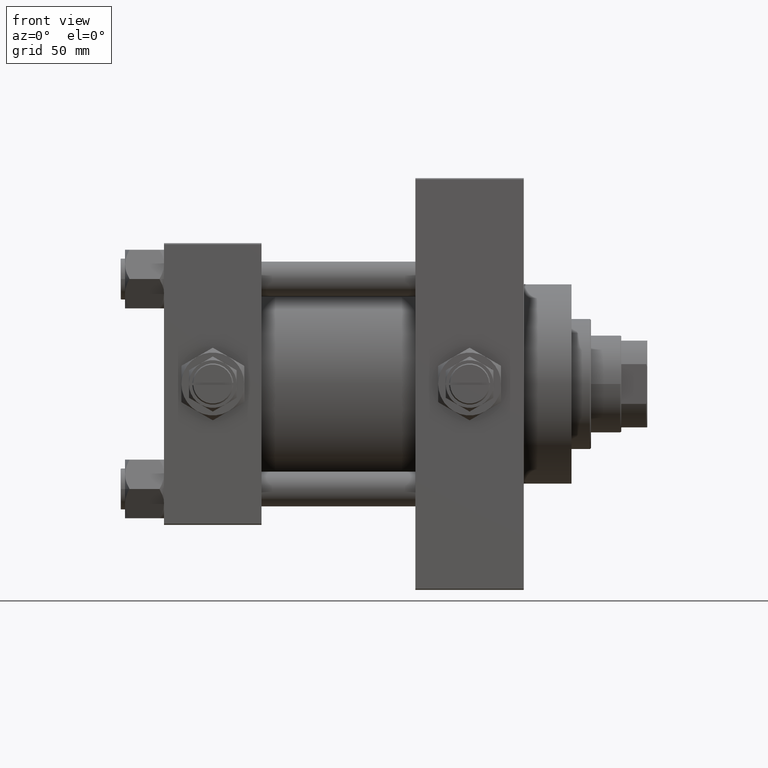
[diagram: clean part render]
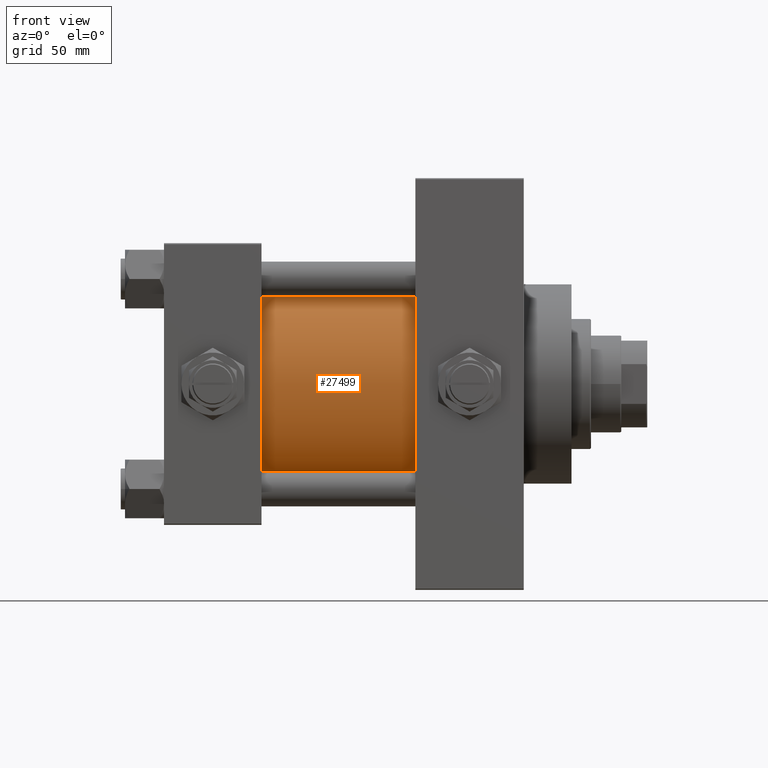
[diagram: same view with one face highlighted and labeled with its STEP entity id]
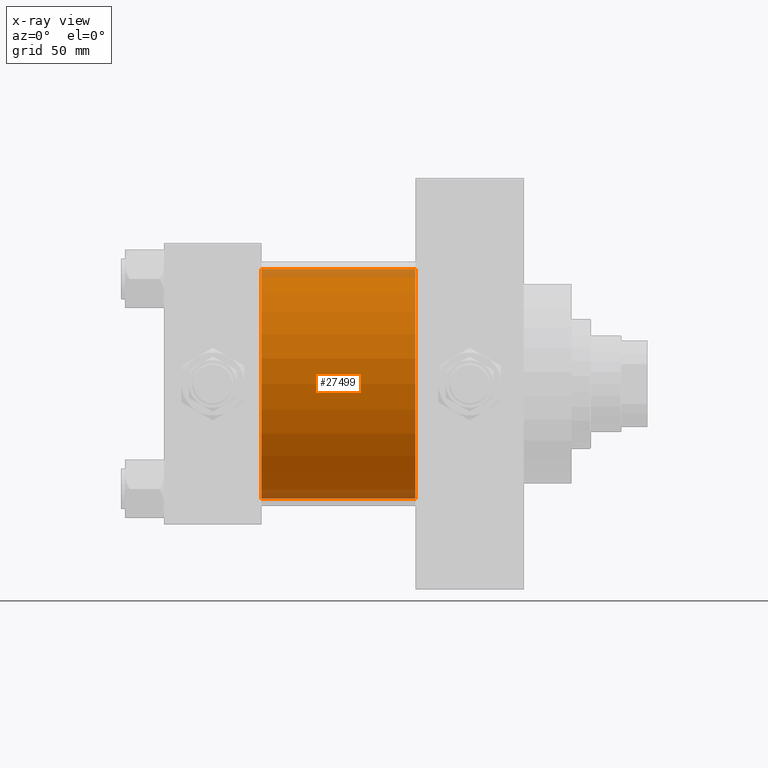
[diagram: x-ray of the same camera — body ghosted, the highlighted face saturated]
A machine part, front view. The second image highlights one B-rep face of the part: STEP entity #27499.
The next image is the same camera in x-ray: the body ghosted, the highlighted face saturated — about 7% of this face is hidden behind the body in this view.
In plain terms, the highlighted cylindrical surface (partial cylindrical patch) has radius 53 mm, axis along (-1, -0, -0).
Its self-contained STEP definition (entity closure, byte-faithful):
#696 = ORIENTED_EDGE ( 'NONE', *, *, #7670, .F. ) ;
#1252 = DIRECTION ( 'NONE',  ( -1.000000000000000000, -0.000000000000000000, -0.000000000000000000 ) ) ;
#1954 = CARTESIAN_POINT ( 'NONE',  ( 45.00000000000000000, -2.602085213965210642E-15, 53.00000000000000711 ) ) ;
#2209 = DIRECTION ( 'NONE',  ( 1.000000000000000000, 0.000000000000000000, 0.000000000000000000 ) ) ;
#3716 = CYLINDRICAL_SURFACE ( 'NONE', #19682, 53.00000000000000711 ) ;
#4535 = CARTESIAN_POINT ( 'NONE',  ( 115.9999999999999858, -2.602085213965210642E-15, 53.00000000000000711 ) ) ;
#5491 = DIRECTION ( 'NONE',  ( 0.000000000000000000, 0.000000000000000000, -1.000000000000000000 ) ) ;
#5982 = CARTESIAN_POINT ( 'NONE',  ( 45.00000000000000000, 3.888542821515762466E-15, -53.00000000000000711 ) ) ;
#6069 = EDGE_CURVE ( 'NONE', #44959, #45051, #38116, .T. ) ;
#6379 = ORIENTED_EDGE ( 'NONE', *, *, #29946, .F. ) ;
#6816 = VECTOR ( 'NONE', #10041, 1000.000000000000000 ) ;
#7670 = EDGE_CURVE ( 'NONE', #27767, #45051, #13816, .T. ) ;
#10041 = DIRECTION ( 'NONE',  ( -1.000000000000000000, -0.000000000000000000, -0.000000000000000000 ) ) ;
#10516 = DIRECTION ( 'NONE',  ( 0.000000000000000000, 0.000000000000000000, 1.000000000000000000 ) ) ;
#11026 = CARTESIAN_POINT ( 'NONE',  ( 115.9999999999999858, 3.888542821515762466E-15, -53.00000000000000711 ) ) ;
#11494 = CARTESIAN_POINT ( 'NONE',  ( 115.9999999999999858, -2.602085213965210642E-15, 53.00000000000000711 ) ) ;
#13816 = LINE ( 'NONE', #11026, #6816 ) ;
#14180 = CIRCLE ( 'NONE', #47143, 53.00000000000000711 ) ;
#15035 = CARTESIAN_POINT ( 'NONE',  ( 115.9999999999999858, -2.602085213965210642E-15, 0.000000000000000000 ) ) ;
#15199 = ORIENTED_EDGE ( 'NONE', *, *, #6069, .T. ) ;
#17023 = CARTESIAN_POINT ( 'NONE',  ( 115.9999999999999858, 3.888542821515762466E-15, -53.00000000000000711 ) ) ;
#19059 = DIRECTION ( 'NONE',  ( -1.000000000000000000, -0.000000000000000000, -0.000000000000000000 ) ) ;
#19682 = AXIS2_PLACEMENT_3D ( 'NONE', #15035, #19059, #10516 ) ;
#23062 = EDGE_CURVE ( 'NONE', #40597, #44959, #39025, .T. ) ;
#23615 = CARTESIAN_POINT ( 'NONE',  ( 115.9999999999999858, -2.602085213965210642E-15, 0.000000000000000000 ) ) ;
#23632 = AXIS2_PLACEMENT_3D ( 'NONE', #36291, #39813, #28990 ) ;
#27499 = ADVANCED_FACE ( 'NONE', ( #33675 ), #3716, .T. ) ;
#27767 = VERTEX_POINT ( 'NONE', #17023 ) ;
#28990 = DIRECTION ( 'NONE',  ( 0.000000000000000000, 0.000000000000000000, 1.000000000000000000 ) ) ;
#29946 = EDGE_CURVE ( 'NONE', #40597, #27767, #14180, .T. ) ;
#32416 = VECTOR ( 'NONE', #1252, 1000.000000000000000 ) ;
#33675 = FACE_OUTER_BOUND ( 'NONE', #40874, .T. ) ;
#36291 = CARTESIAN_POINT ( 'NONE',  ( 45.00000000000000000, -2.602085213965210642E-15, 0.000000000000000000 ) ) ;
#38116 = CIRCLE ( 'NONE', #23632, 53.00000000000000711 ) ;
#39025 = LINE ( 'NONE', #4535, #32416 ) ;
#39813 = DIRECTION ( 'NONE',  ( 1.000000000000000000, -0.000000000000000000, 0.000000000000000000 ) ) ;
#40597 = VERTEX_POINT ( 'NONE', #11494 ) ;
#40874 = EDGE_LOOP ( 'NONE', ( #696, #6379, #41889, #15199 ) ) ;
#41889 = ORIENTED_EDGE ( 'NONE', *, *, #23062, .T. ) ;
#44959 = VERTEX_POINT ( 'NONE', #1954 ) ;
#45051 = VERTEX_POINT ( 'NONE', #5982 ) ;
#47143 = AXIS2_PLACEMENT_3D ( 'NONE', #23615, #2209, #5491 ) ;